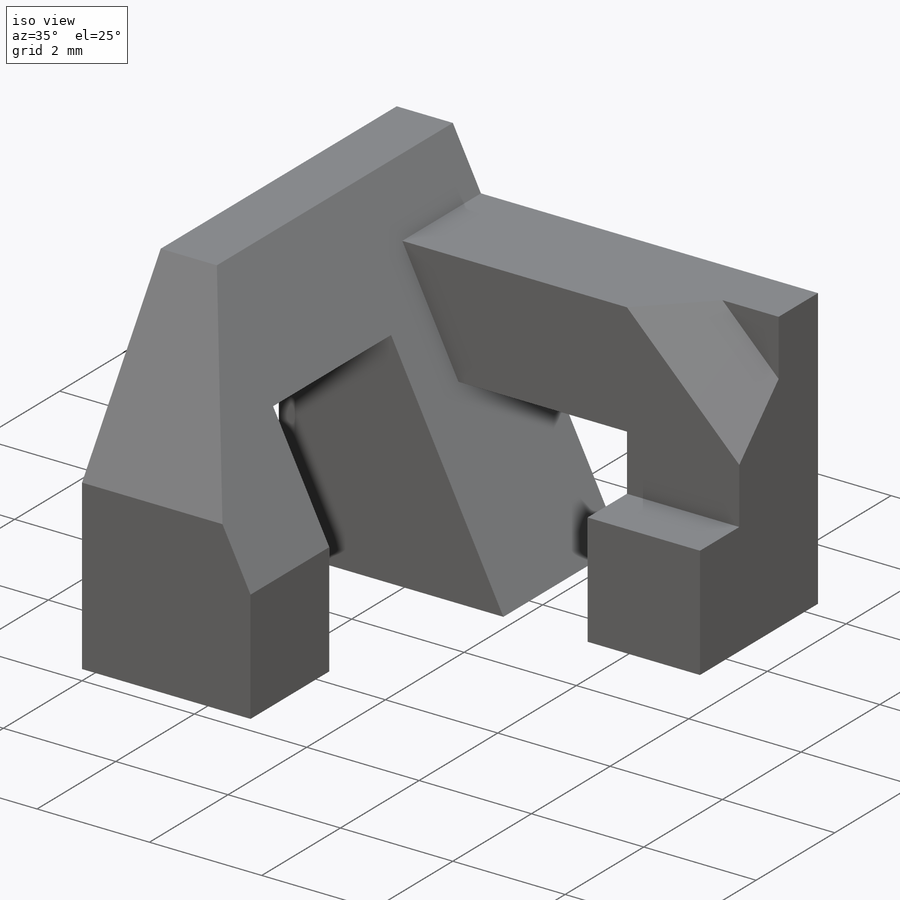
[diagram: iso view]
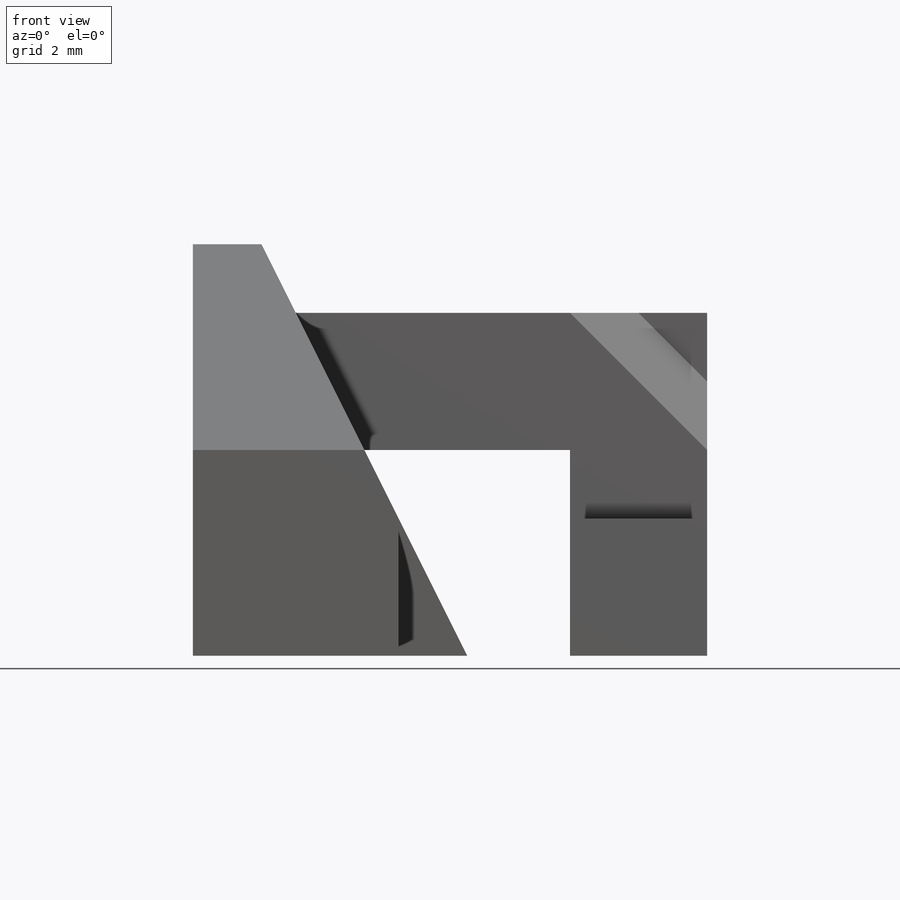
[diagram: front view]
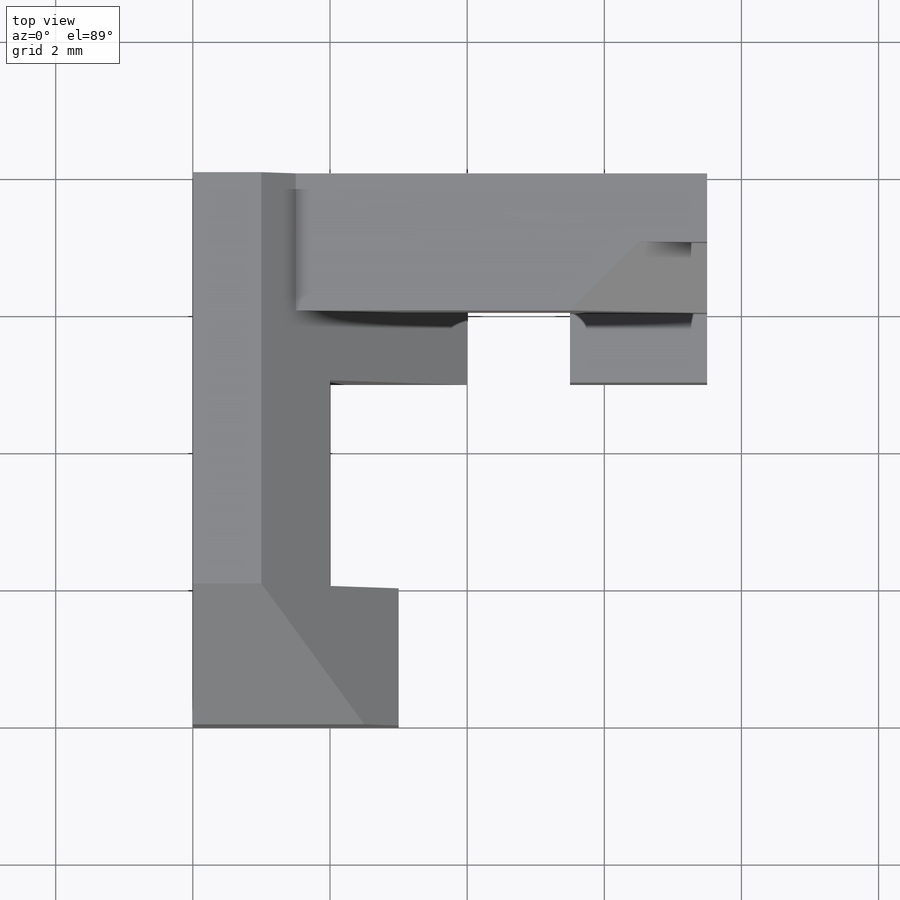
[diagram: top view]
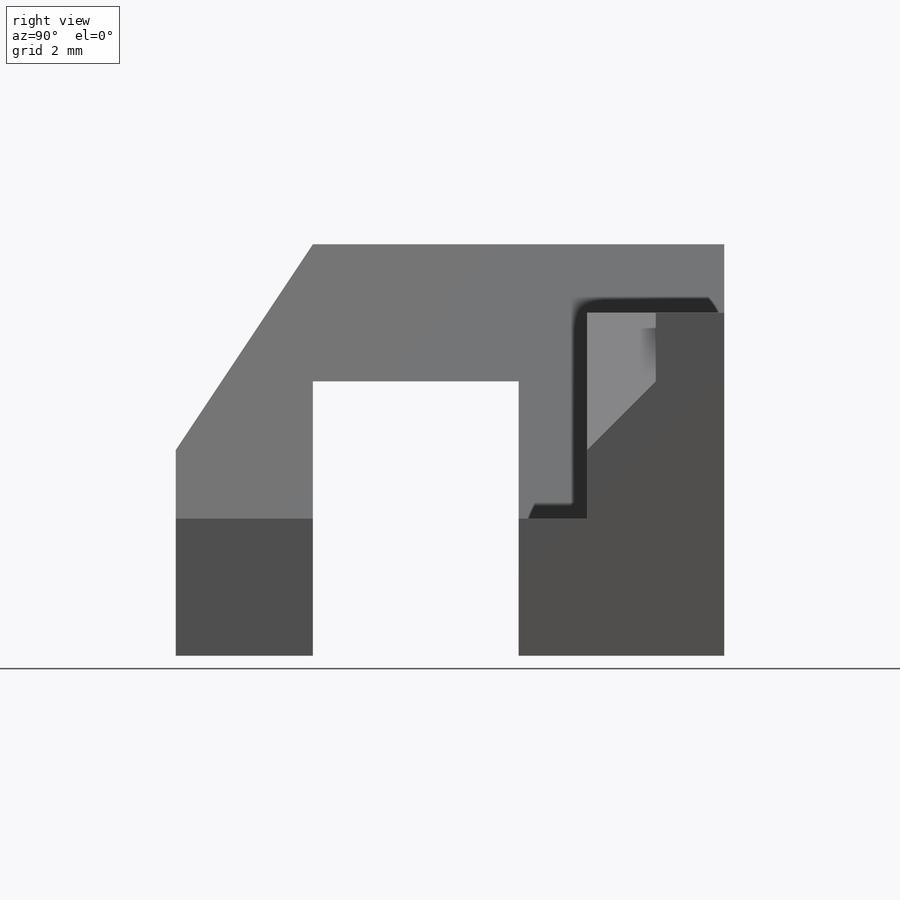
[diagram: right view]
SOLIDWORKS PART (.sldprt)
format: sldprt  version: not decoded by parser v0  size: 334,336 bytes
history: native  units: mm
features: sketch x17, cut_extrude x7, extrude x5, plane x2, material x1 (+13 scaffold rows collapsed)
feature tree (45):
  scaffold x13  (default folders/planes/origin — collapsed)
  material  "Material <not specified>"
  sketch  "Sketch1"  dims[D1=4.0mm D2=6.0mm]
  extrude  "Boss-Extrude1"  Depth=8mm
  sketch  "Sketch2"  dims[D1=1.0mm D2=2.0mm D3=5.0mm]
  plane  "Plane2"
  sketch  "Sketch6"
  cut_extrude  "Cut-Extrude4"  Depth=8mm
  sketch  "Sketch7"  dims[D1=3.0mm D2=2.0mm D3=3.0mm]
  cut_extrude  "Cut-Extrude5"  [1 undecoded]
  sketch  "Sketch8"  dims[D1=1.0mm]
  cut_extrude  "Cut-Extrude6"  [1 undecoded]
  sketch  "Sketch9"  dims[D1=1.0mm]
  cut_extrude  "Cut-Extrude7"  [1 undecoded]
  sketch  "Sketch10"  dims[D1=2.0mm D2=3.0mm]
  cut_extrude  "Cut-Extrude8"  [1 undecoded]
  sketch  "Sketch12"  dims[D1=2.0mm D2=2.0mm D3=1.0mm D4=1.0mm]
  extrude  "Boss-Extrude2"  Depth=6mm
  sketch  "Sketch13"
  extrude  "Boss-Extrude3"  Depth=1.5mm
  sketch  "Sketch14"  dims[D1=2.0mm]
  extrude  "Boss-Extrude4"  Depth=3mm
  sketch  "Sketch15"  dims[D1=2.0mm]
  extrude  "Boss-Extrude5"  Depth=1mm
  sketch  "Sketch16"  dims[D1=2.0mm D2=2.0mm]
  sketch  "Sketch17"  dims[D1=1.0mm D2=1.0mm]
  plane  "Plane3"
  sketch  "Sketch18"  dims[D1=1.0mm]
  cut_extrude  "Cut-Extrude9"  Depth=1mm
  sketch  "Sketch19"  dims[D1=1.0mm]
  sketch  "Sketch20"  dims[D1=1.0mm]
  sketch  "3DSketch1"
  cut_extrude  "Cut-Extrude10"  Depth=1mm
decode coverage: 22 of 29 modeling features carry decoded parameters
note: 4 parameter values undecoded
summary: no parameter record found for 4 features
note: suppression state not decoded; provenance and decode notes live in map.json
